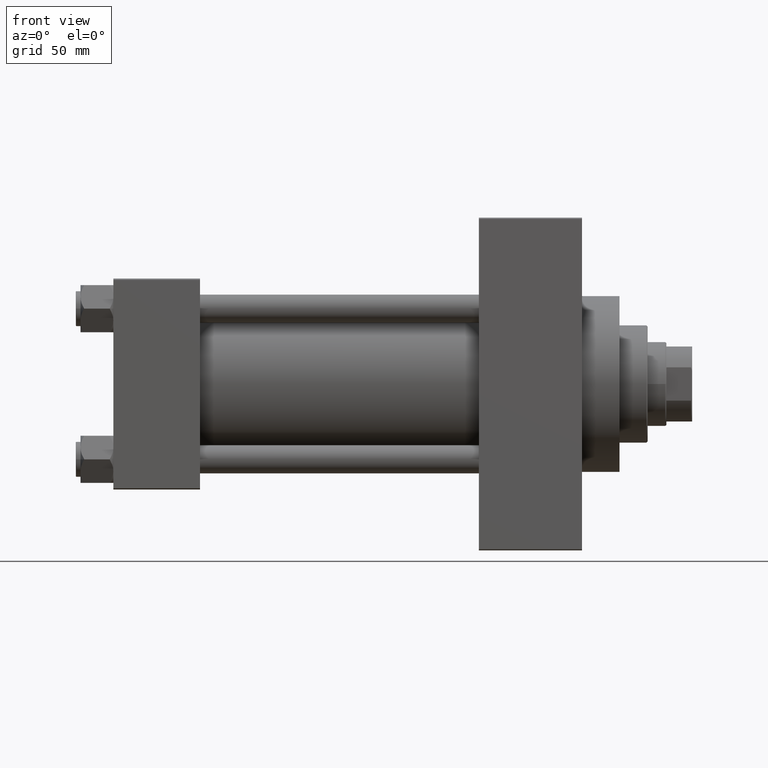
[diagram: clean part render]
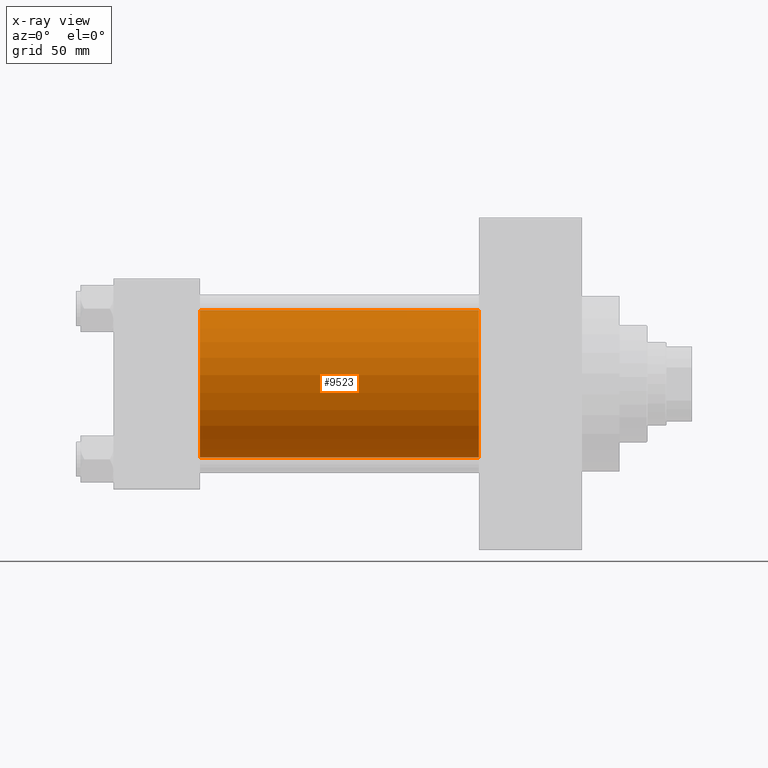
[diagram: x-ray — body ghosted, one internal face saturated and labeled with its STEP entity id]
A machine part, front view, then the same camera in x-ray: the body is ghosted and one INTERNAL B-rep face — a face not visible from any outside direction — is saturated and labeled: STEP entity #9523.
In plain terms, the highlighted cylindrical surface (partial cylindrical patch) has radius 31.5 mm, axis along (-1, -0, -0).
Its self-contained STEP definition (entity closure, byte-faithful):
#4297 = VERTEX_POINT ( 'NONE', #26918 ) ;
#5946 = LINE ( 'NONE', #35180, #46890 ) ;
#6404 = VECTOR ( 'NONE', #25202, 1000.000000000000000 ) ;
#6450 = CARTESIAN_POINT ( 'NONE',  ( 156.0000000000000000, -2.602085213965210642E-15, 0.000000000000000000 ) ) ;
#7781 = AXIS2_PLACEMENT_3D ( 'NONE', #6450, #21063, #10275 ) ;
#8175 = ORIENTED_EDGE ( 'NONE', *, *, #29478, .T. ) ;
#8735 = DIRECTION ( 'NONE',  ( 0.000000000000000000, 0.000000000000000000, 1.000000000000000000 ) ) ;
#9523 = ADVANCED_FACE ( 'NONE', ( #38228 ), #19760, .F. ) ;
#10275 = DIRECTION ( 'NONE',  ( 0.000000000000000000, 0.000000000000000000, -1.000000000000000000 ) ) ;
#10595 = LINE ( 'NONE', #14426, #6404 ) ;
#11868 = CARTESIAN_POINT ( 'NONE',  ( 156.0000000000000000, -2.602085213965210642E-15, 0.000000000000000000 ) ) ;
#12631 = CARTESIAN_POINT ( 'NONE',  ( 156.0000000000000000, -2.602085213965210642E-15, 31.50000000000000000 ) ) ;
#13699 = CARTESIAN_POINT ( 'NONE',  ( 37.00000000000000000, -2.602085213965210642E-15, 0.000000000000000000 ) ) ;
#14426 = CARTESIAN_POINT ( 'NONE',  ( 156.0000000000000000, 1.255552203348951850E-15, -31.50000000000000000 ) ) ;
#16190 = CARTESIAN_POINT ( 'NONE',  ( 37.00000000000000000, -2.602085213965210642E-15, 31.50000000000000000 ) ) ;
#16917 = CARTESIAN_POINT ( 'NONE',  ( 156.0000000000000000, 1.255552203348951850E-15, -31.50000000000000000 ) ) ;
#17958 = ORIENTED_EDGE ( 'NONE', *, *, #31658, .F. ) ;
#19760 = CYLINDRICAL_SURFACE ( 'NONE', #41803, 31.50000000000000000 ) ;
#21063 = DIRECTION ( 'NONE',  ( 1.000000000000000000, 0.000000000000000000, 0.000000000000000000 ) ) ;
#24617 = DIRECTION ( 'NONE',  ( -1.000000000000000000, -0.000000000000000000, -0.000000000000000000 ) ) ;
#24952 = DIRECTION ( 'NONE',  ( 1.000000000000000000, 0.000000000000000000, 0.000000000000000000 ) ) ;
#25202 = DIRECTION ( 'NONE',  ( -1.000000000000000000, -0.000000000000000000, -0.000000000000000000 ) ) ;
#26918 = CARTESIAN_POINT ( 'NONE',  ( 37.00000000000000000, 1.255552203348951850E-15, -31.50000000000000000 ) ) ;
#27428 = DIRECTION ( 'NONE',  ( -1.000000000000000000, -0.000000000000000000, -0.000000000000000000 ) ) ;
#27715 = CIRCLE ( 'NONE', #41479, 31.50000000000000000 ) ;
#28313 = DIRECTION ( 'NONE',  ( 0.000000000000000000, 0.000000000000000000, -1.000000000000000000 ) ) ;
#28432 = CIRCLE ( 'NONE', #7781, 31.50000000000000000 ) ;
#29478 = EDGE_CURVE ( 'NONE', #42415, #32712, #28432, .T. ) ;
#30388 = EDGE_CURVE ( 'NONE', #41885, #4297, #27715, .T. ) ;
#31658 = EDGE_CURVE ( 'NONE', #42415, #41885, #5946, .T. ) ;
#32096 = ORIENTED_EDGE ( 'NONE', *, *, #34987, .T. ) ;
#32712 = VERTEX_POINT ( 'NONE', #16917 ) ;
#34987 = EDGE_CURVE ( 'NONE', #32712, #4297, #10595, .T. ) ;
#35180 = CARTESIAN_POINT ( 'NONE',  ( 156.0000000000000000, -2.602085213965210642E-15, 31.50000000000000000 ) ) ;
#35478 = ORIENTED_EDGE ( 'NONE', *, *, #30388, .F. ) ;
#38228 = FACE_OUTER_BOUND ( 'NONE', #40649, .T. ) ;
#40649 = EDGE_LOOP ( 'NONE', ( #8175, #32096, #35478, #17958 ) ) ;
#41479 = AXIS2_PLACEMENT_3D ( 'NONE', #13699, #24952, #28313 ) ;
#41803 = AXIS2_PLACEMENT_3D ( 'NONE', #11868, #27428, #8735 ) ;
#41885 = VERTEX_POINT ( 'NONE', #16190 ) ;
#42415 = VERTEX_POINT ( 'NONE', #12631 ) ;
#46890 = VECTOR ( 'NONE', #24617, 1000.000000000000000 ) ;